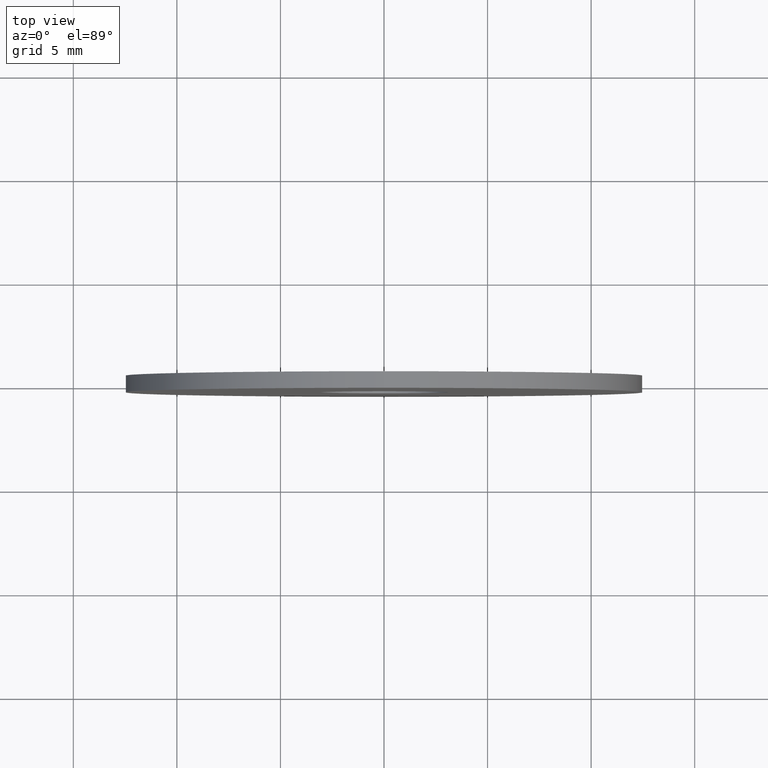
[diagram: clean part render]
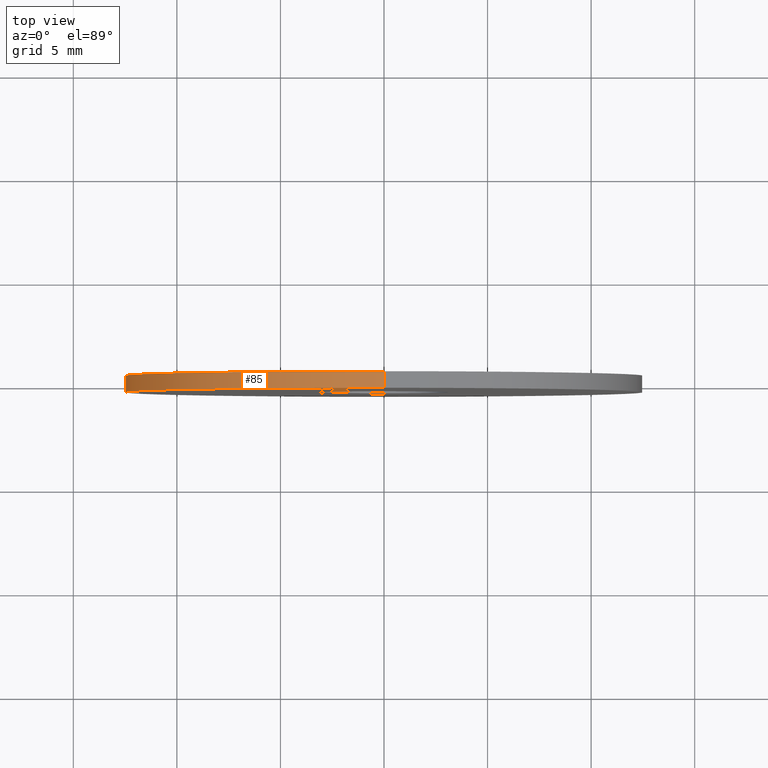
[diagram: same view with one face highlighted and labeled with its STEP entity id]
A machine part, top view. The second image highlights one B-rep face of the part: STEP entity #85.
In plain terms, the highlighted cylindrical surface (partial cylindrical patch) has radius 12.5 mm, axis along (-0, -1, -0).
Its self-contained STEP definition (entity closure, byte-faithful):
#3 = DIRECTION ( 'NONE',  ( 0.000000000000000000, 1.000000000000000000, 0.000000000000000000 ) ) ;
#6 = CARTESIAN_POINT ( 'NONE',  ( 0.000000000000000000, -0.4000000000000000222, -12.50000000000000000 ) ) ;
#16 = CARTESIAN_POINT ( 'NONE',  ( 1.530808498934191521E-15, -0.4000000000000000222, 12.50000000000000000 ) ) ;
#20 = ORIENTED_EDGE ( 'NONE', *, *, #247, .F. ) ;
#40 = VERTEX_POINT ( 'NONE', #16 ) ;
#45 = CARTESIAN_POINT ( 'NONE',  ( 0.000000000000000000, 0.4000000000000000222, -12.50000000000000000 ) ) ;
#74 = DIRECTION ( 'NONE',  ( 0.000000000000000000, 0.000000000000000000, -1.000000000000000000 ) ) ;
#81 = CARTESIAN_POINT ( 'NONE',  ( 1.530808498934191521E-15, 0.4000000000000000222, 12.50000000000000000 ) ) ;
#85 = ADVANCED_FACE ( 'NONE', ( #194 ), #129, .T. ) ;
#93 = CARTESIAN_POINT ( 'NONE',  ( 0.000000000000000000, 0.4000000000000000222, 0.000000000000000000 ) ) ;
#102 = LINE ( 'NONE', #81, #157 ) ;
#104 = CIRCLE ( 'NONE', #116, 12.50000000000000000 ) ;
#108 = CARTESIAN_POINT ( 'NONE',  ( 0.000000000000000000, -0.4000000000000000222, 0.000000000000000000 ) ) ;
#109 = CIRCLE ( 'NONE', #120, 12.50000000000000000 ) ;
#110 = ORIENTED_EDGE ( 'NONE', *, *, #141, .T. ) ;
#115 = EDGE_CURVE ( 'NONE', #136, #126, #109, .T. ) ;
#116 = AXIS2_PLACEMENT_3D ( 'NONE', #108, #3, #159 ) ;
#120 = AXIS2_PLACEMENT_3D ( 'NONE', #151, #206, #133 ) ;
#124 = CARTESIAN_POINT ( 'NONE',  ( 0.000000000000000000, 0.4000000000000000222, -12.50000000000000000 ) ) ;
#126 = VERTEX_POINT ( 'NONE', #197 ) ;
#129 = CYLINDRICAL_SURFACE ( 'NONE', #152, 12.50000000000000000 ) ;
#133 = DIRECTION ( 'NONE',  ( 0.000000000000000000, 0.000000000000000000, 1.000000000000000000 ) ) ;
#136 = VERTEX_POINT ( 'NONE', #45 ) ;
#138 = VECTOR ( 'NONE', #184, 1000.000000000000000 ) ;
#141 = EDGE_CURVE ( 'NONE', #136, #177, #142, .T. ) ;
#142 = LINE ( 'NONE', #124, #138 ) ;
#144 = ORIENTED_EDGE ( 'NONE', *, *, #115, .F. ) ;
#146 = ORIENTED_EDGE ( 'NONE', *, *, #231, .T. ) ;
#151 = CARTESIAN_POINT ( 'NONE',  ( 0.000000000000000000, 0.4000000000000000222, 0.000000000000000000 ) ) ;
#152 = AXIS2_PLACEMENT_3D ( 'NONE', #93, #170, #74 ) ;
#157 = VECTOR ( 'NONE', #237, 1000.000000000000000 ) ;
#159 = DIRECTION ( 'NONE',  ( 0.000000000000000000, 0.000000000000000000, 1.000000000000000000 ) ) ;
#163 = EDGE_LOOP ( 'NONE', ( #20, #144, #110, #146 ) ) ;
#170 = DIRECTION ( 'NONE',  ( -0.000000000000000000, -1.000000000000000000, -0.000000000000000000 ) ) ;
#177 = VERTEX_POINT ( 'NONE', #6 ) ;
#184 = DIRECTION ( 'NONE',  ( -0.000000000000000000, -1.000000000000000000, -0.000000000000000000 ) ) ;
#194 = FACE_OUTER_BOUND ( 'NONE', #163, .T. ) ;
#197 = CARTESIAN_POINT ( 'NONE',  ( 1.530808498934191521E-15, 0.4000000000000000222, 12.50000000000000000 ) ) ;
#206 = DIRECTION ( 'NONE',  ( 0.000000000000000000, 1.000000000000000000, 0.000000000000000000 ) ) ;
#231 = EDGE_CURVE ( 'NONE', #177, #40, #104, .T. ) ;
#237 = DIRECTION ( 'NONE',  ( -0.000000000000000000, -1.000000000000000000, -0.000000000000000000 ) ) ;
#247 = EDGE_CURVE ( 'NONE', #126, #40, #102, .T. ) ;